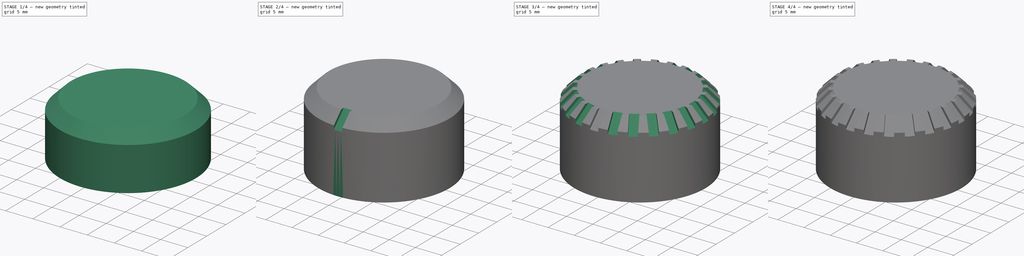
[diagram: build sequence overview — one tinted view per stage of 4, left to right]
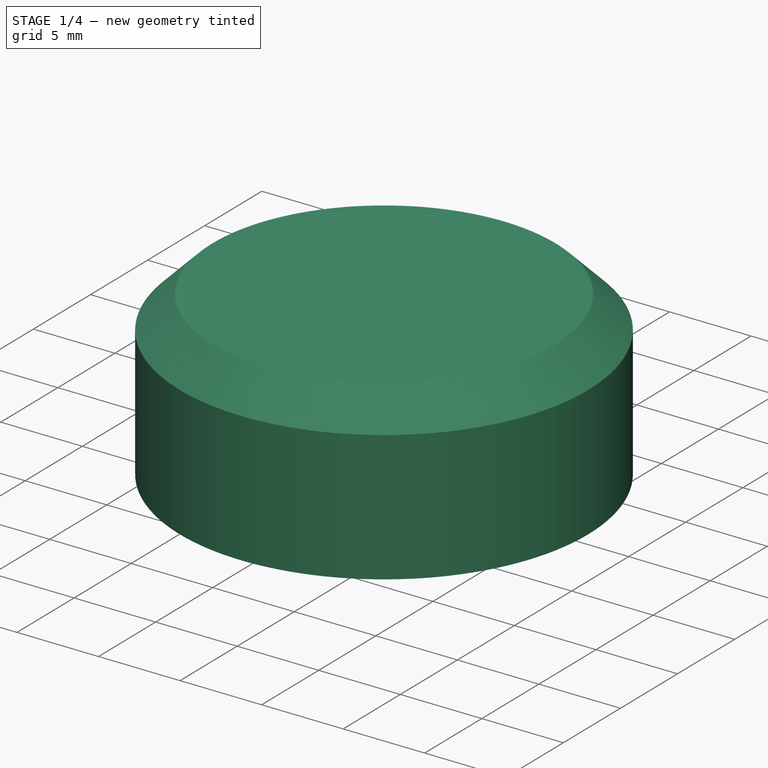
[diagram: stage 1 of 4 — iso view after this stage's code; geometry added in this stage tinted green]
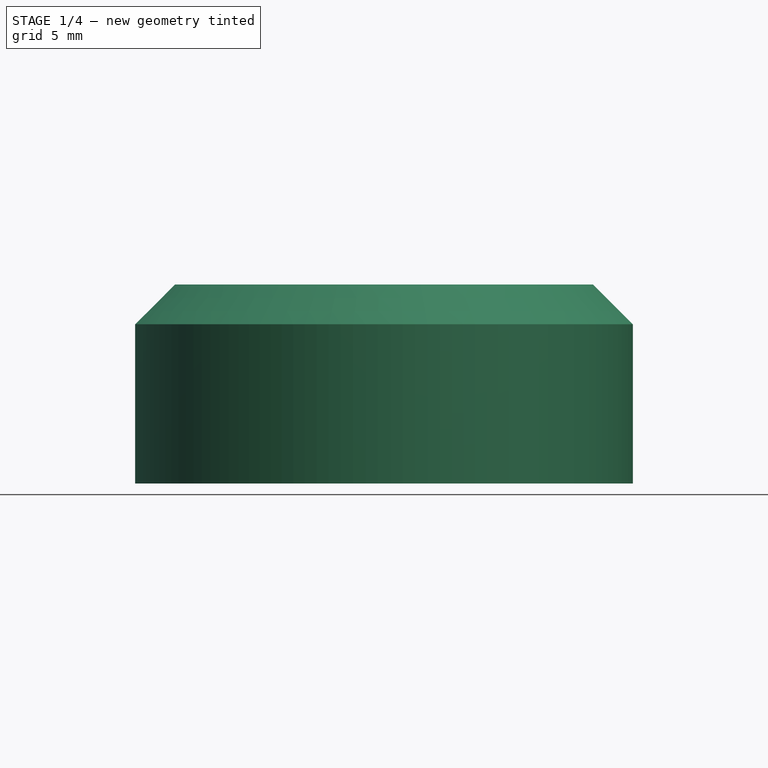
[diagram: stage 1 of 4 — front view after this stage's code; geometry added in this stage tinted green]
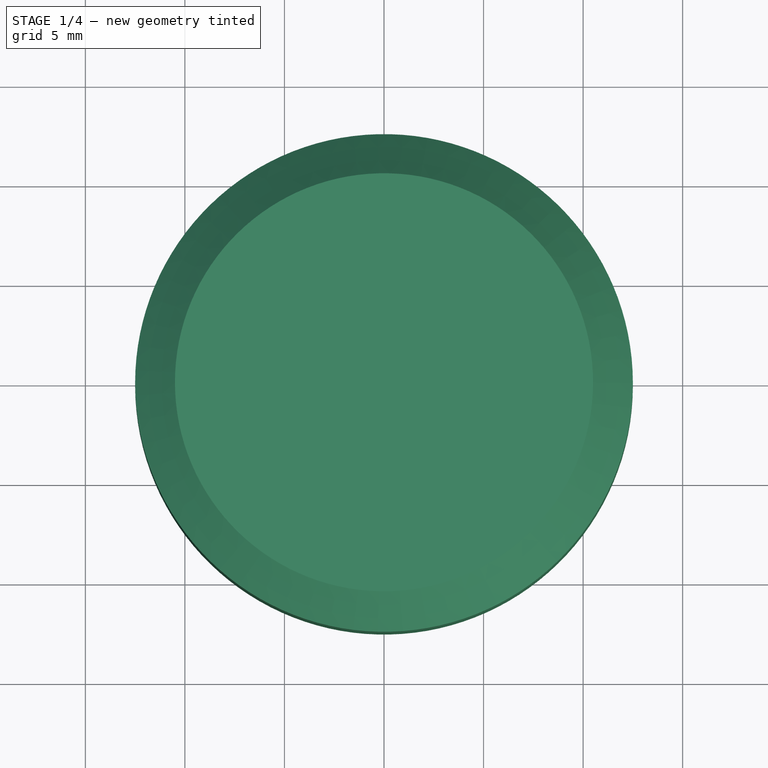
[diagram: stage 1 of 4 — top view after this stage's code; geometry added in this stage tinted green]
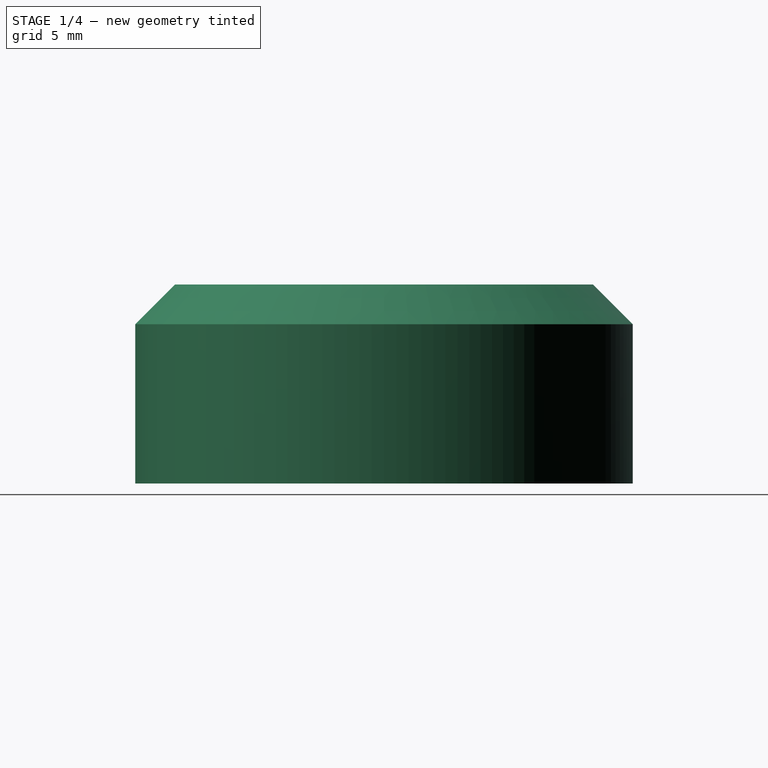
[diagram: stage 1 of 4 — right view after this stage's code; geometry added in this stage tinted green]
FCSTD DOCUMENT  (FreeCAD 1.0R39285 (Git))
Label: encoder
License: All rights reserved
LicenseURL: https://en.wikipedia.org/wiki/All_rights_reserved
objects: Sketcher::SketchObject×8, PartDesign::Pocket×4, PartDesign::Pad×3, PartDesign::Chamfer×3, PartDesign::PolarPattern×2, PartDesign::Body×2, PartDesign::Revolution×1
note: 55 computed .brp shape members not serialized (recipe doc carries the construction recipe); baked Part::Feature solids carry a one-line shape summary decoded from their .brp

FEATURE [PartDesign::Body] Body  label="cover"
  AllowCompound = false
  Group = -> [Sketch,Revolution,Sketch001,Pad,PolarPattern]
  Origin = -> Origin
  Tip = -> PolarPattern
FEATURE [Sketcher::SketchObject] Sketch002
  ArcFitTolerance = 1e-06
  AttachmentSupport = -> [XY_Plane001]
  FullyConstrained = true
  MakeInternals = false
  MapMode = 5
  sketch-geometry (1):
    g0: Circle CenterX=0 CenterY=0 CenterZ=0 NormalX=0 NormalY=0 NormalZ=1 AngleXU=0 Radius=12.5
  constraints (2):
    c: Coincident(g0,g-1)
    c: Diameter(g0) = 25
FEATURE [PartDesign::Pad] Pad001
  Direction = (0,0,1)
  Length = 10
  Length2 = 10
  Profile = -> Sketch002
  ReferenceAxis = -> Sketch002 [N_Axis]
  Refine = true
  Suppressed = false
  Type = 0
FEATURE [Sketcher::SketchObject] Sketch003
  ArcFitTolerance = 1e-06
  AttachmentSupport = -> [XY_Plane001]
  FullyConstrained = true
  MakeInternals = false
  MapMode = 5
  sketch-geometry (3):
    g0: ArcOfCircle CenterX=0 CenterY=0 CenterZ=0 NormalX=0 NormalY=0 NormalZ=1 AngleXU=0 Radius=3.1 StartAngle=2.81314 EndAngle=6.61164
    g1: LineSegment StartX=-2.93428 StartY=1 StartZ=0 EndX=2.93428 EndY=1 EndZ=0
    g2: GeomPoint X=0 Y=-3.1 Z=0
  constraints (8):
    c: Coincident(g0,g-1)
    c: Radius(g0) = 3.1
    c: Horizontal(g0,g0)
    c: Coincident(g1,g0)
    c: Coincident(g1,g0)
    c: PointOnObject(g2,g0)
    c: PointOnObject(g2,g-2)
    c: Distance(g2,g1) = 4.1
FEATURE [PartDesign::Pocket] Pocket
  BaseFeature = -> Pad001
  Direction = (0,0,-1)
  Length = 6
  Length2 = 5
  Profile = -> Sketch003
  ReferenceAxis = -> Sketch003 [N_Axis]
  Refine = true
  Reversed = true
  Suppressed = false
  Type = 0
FEATURE [PartDesign::Chamfer] Chamfer
  Angle = 45
  Base = -> Pocket [Edge3]
  BaseFeature = -> Pocket
  ChamferType = 0
  FlipDirection = false
  Refine = true
  Size = 2
  Size2 = 1
  SupportTransform = false
  Suppressed = false
  UseAllEdges = false
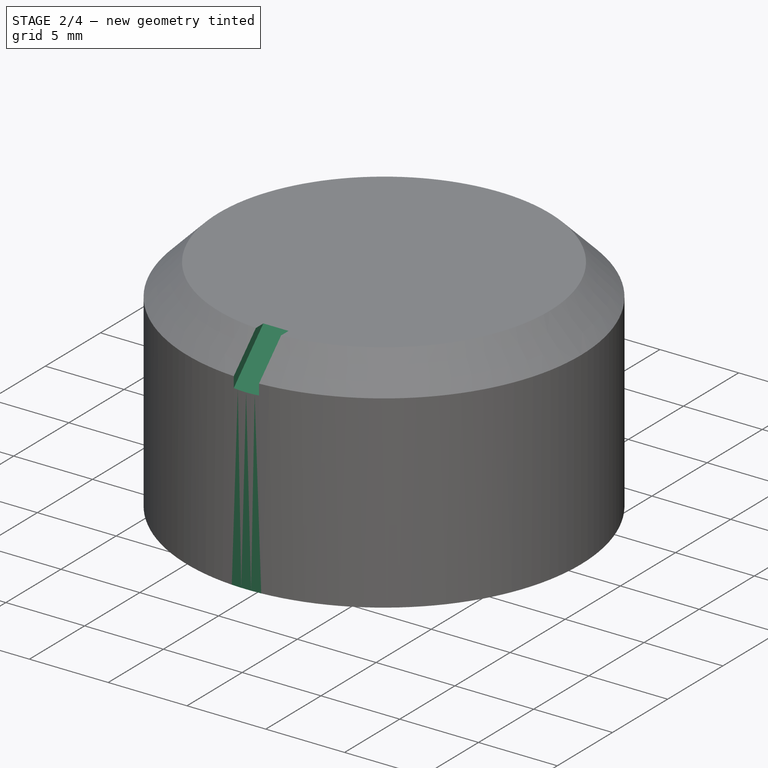
[diagram: stage 2 of 4 — iso view after this stage's code; geometry added in this stage tinted green]
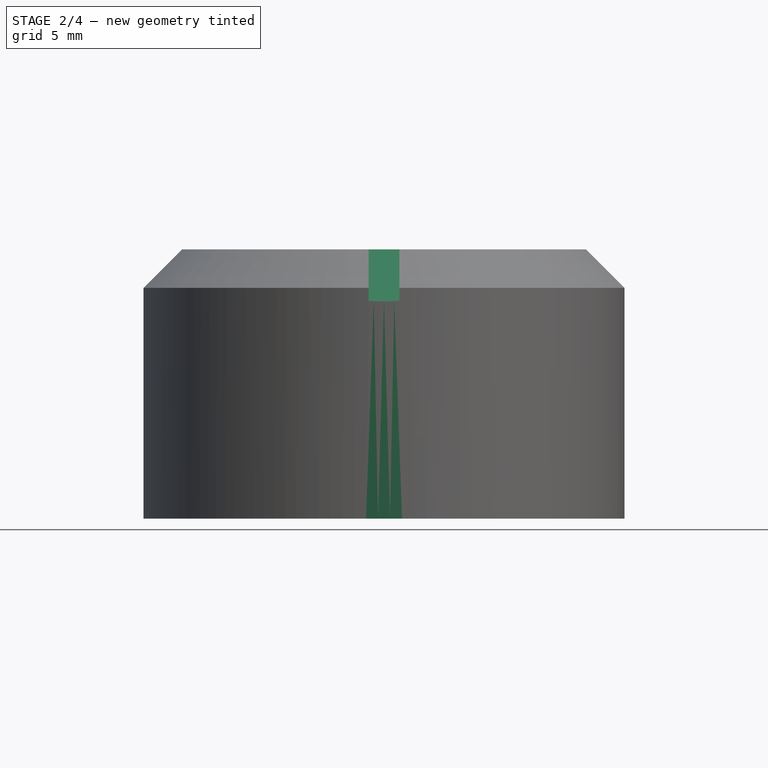
[diagram: stage 2 of 4 — front view after this stage's code; geometry added in this stage tinted green]
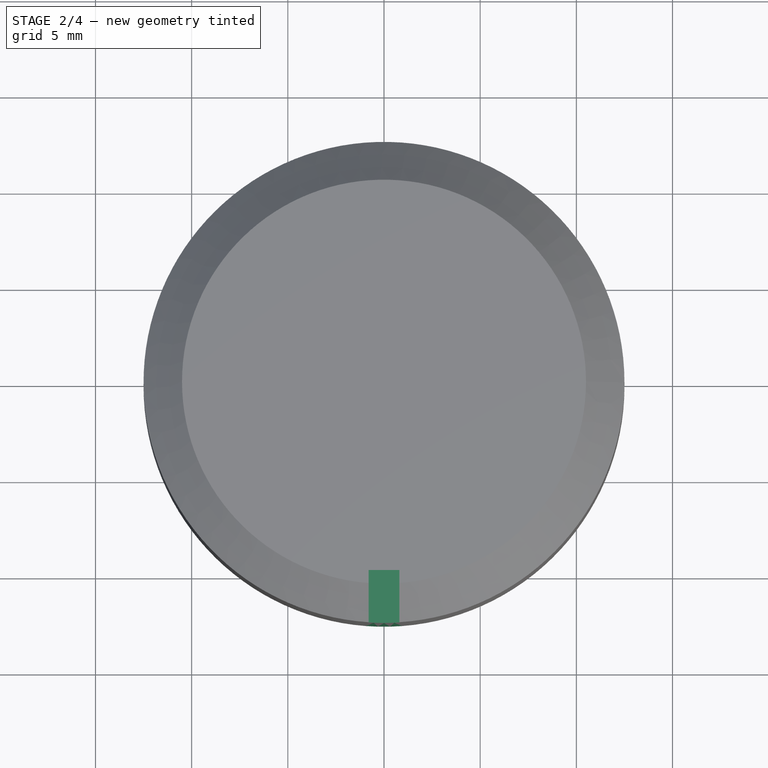
[diagram: stage 2 of 4 — top view after this stage's code; geometry added in this stage tinted green]
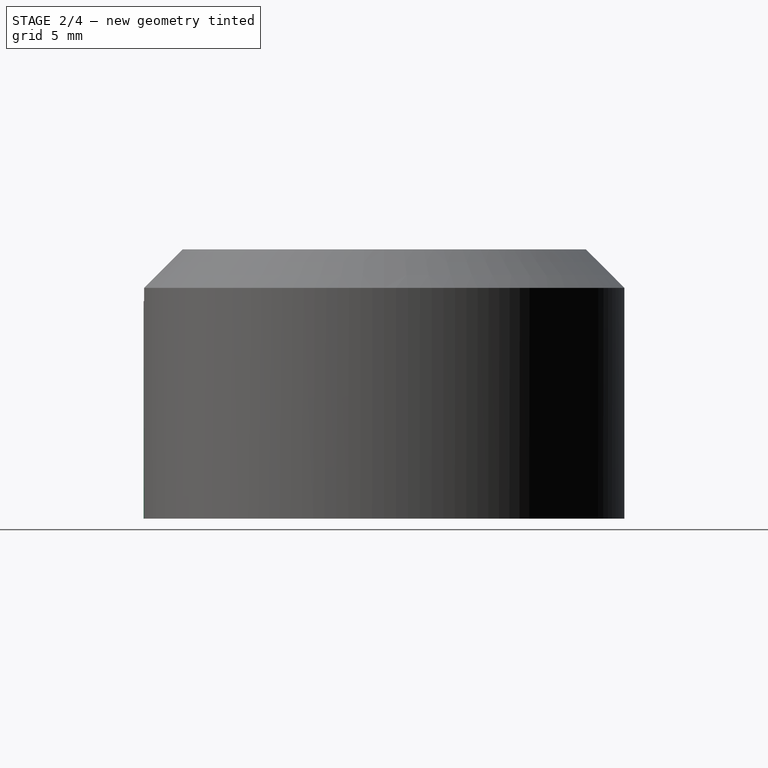
[diagram: stage 2 of 4 — right view after this stage's code; geometry added in this stage tinted green]
FEATURE [Sketcher::SketchObject] Sketch004
  ArcFitTolerance = 1e-06
  AttachmentSupport = -> [XY_Plane001]
  FullyConstrained = true
  MakeInternals = false
  MapMode = 5
  sketch-geometry (26):
    g0: GeomPoint X=0 Y=0 Z=0
    g1: LineSegment [constr] StartX=0 StartY=0 StartZ=0 EndX=-2.93428 EndY=1 EndZ=0
    g2: LineSegment StartX=-10 StartY=0.8 StartZ=0 EndX=-10 EndY=0.7 EndZ=0
    g3: LineSegment StartX=-9.8 StartY=0.5 StartZ=0 EndX=9.8 EndY=0.5 EndZ=0
    g4: LineSegment StartX=10 StartY=0.7 StartZ=0 EndX=10 EndY=0.8 EndZ=0
    g5: LineSegment StartX=9.8 StartY=1 StartZ=0 EndX=-9.8 EndY=1 EndZ=0
    g6: LineSegment StartX=-10 StartY=2.6 StartZ=0 EndX=-10 EndY=2.4 EndZ=0
    g7: LineSegment StartX=-9.6 StartY=2 StartZ=0 EndX=9.6 EndY=2 EndZ=0
    g8: LineSegment StartX=10 StartY=2.4 StartZ=0 EndX=10 EndY=2.6 EndZ=0
    g9: LineSegment StartX=9.6 StartY=3 StartZ=0 EndX=-9.6 EndY=3 EndZ=0
    g10: ArcOfCircle CenterX=9.6 CenterY=2.6 CenterZ=0 NormalX=0 NormalY=0 NormalZ=1 AngleXU=0 Radius=0.4 StartAngle=3e-16 EndAngle=1.5708
    g11: GeomPoint [constr] X=10 Y=3 Z=0
    g12: ArcOfCircle CenterX=9.6 CenterY=2.4 CenterZ=0 NormalX=0 NormalY=0 NormalZ=1 AngleXU=0 Radius=0.4 StartAngle=4.71239 EndAngle=6.28319
    g13: GeomPoint [constr] X=10 Y=2 Z=0
    g14: ArcOfCircle CenterX=-9.6 CenterY=2.6 CenterZ=0 NormalX=0 NormalY=0 NormalZ=1 AngleXU=0 Radius=0.4 StartAngle=1.5708 EndAngle=3.14159
    g15: GeomPoint [constr] X=-10 Y=3 Z=0
    g16: ArcOfCircle CenterX=-9.6 CenterY=2.4 CenterZ=0 NormalX=0 NormalY=0 NormalZ=1 AngleXU=0 Radius=0.4 StartAngle=3.14159 EndAngle=4.71239
    g17: GeomPoint [constr] X=-10 Y=2 Z=0
    g18: ArcOfCircle CenterX=9.8 CenterY=0.8 CenterZ=0 NormalX=0 NormalY=0 NormalZ=1 AngleXU=0 Radius=0.2 StartAngle=0 EndAngle=1.5708
    g19: GeomPoint [constr] X=10 Y=1 Z=0
    g20: ArcOfCircle CenterX=9.8 CenterY=0.7 CenterZ=0 NormalX=0 NormalY=0 NormalZ=1 AngleXU=0 Radius=0.2 StartAngle=4.71239 EndAngle=6.28319
    g21: GeomPoint [constr] X=10 Y=0.5 Z=0
    g22: ArcOfCircle CenterX=-9.8 CenterY=0.8 CenterZ=0 NormalX=0 NormalY=0 NormalZ=1 AngleXU=0 Radius=0.2 StartAngle=1.5708 EndAngle=3.14159
    g23: GeomPoint [constr] X=-10 Y=1 Z=0
    g24: ArcOfCircle CenterX=-9.8 CenterY=0.7 CenterZ=0 NormalX=0 NormalY=0 NormalZ=1 AngleXU=0 Radius=0.2 StartAngle=3.14159 EndAngle=4.71239
    g25: GeomPoint [constr] X=-10 Y=0.5 Z=0
  constraints (59):
    c: Coincident(g0,g-1)
    c: Coincident(g1,g0)
    c: Distance(g1,g1) = 3.1
    c: DistanceY(g-1,g1) = 1
    c: Vertical(g2)
    c: Vertical(g4)
    c: Horizontal(g5)
    c: Vertical(g6)
    c: Vertical(g8)
    c: Horizontal(g7)
    c: Horizontal(g9)
    c: Vertical(g23,g17)
    c: Vertical(g19,g13)
    c: PointOnObject(g1,g5)
    c: Distance(g23,g25) = 0.5
    c: Symmetric(g25,g21,g-2)
    c: DistanceY(g19,g13) = 1
    c: DistanceY(g17,g15) = 1
    c: DistanceX(g15,g11) = 20
    c: PointOnObject(g11,g9)
    c: PointOnObject(g11,g8)
    c: Tangent(g9,g10) = -1.5708
    c: Tangent(g8,g10) = -1.5708
    c: PointOnObject(g13,g8)
    c: PointOnObject(g13,g7)
    c: Tangent(g8,g12) = -1.5708
    c: Tangent(g7,g12) = -1.5708
    c: PointOnObject(g15,g9)
    c: PointOnObject(g15,g6)
    c: Tangent(g9,g14) = -1.5708
    c: Tangent(g6,g14) = -1.5708
    c: PointOnObject(g17,g7)
    c: PointOnObject(g17,g6)
    c: Tangent(g7,g16) = -1.5708
    c: Tangent(g6,g16) = -1.5708
    c: Equal(g10,g12)
    c: Equal(g12,g16)
    c: Equal(g16,g14)
    c: Radius(g14) = 0.4
    c: PointOnObject(g19,g5)
    c: PointOnObject(g19,g4)
    c: Tangent(g5,g18) = -1.5708
    c: Tangent(g4,g18) = -1.5708
    c: PointOnObject(g21,g4)
    c: PointOnObject(g21,g3)
    c: Tangent(g4,g20) = -1.5708
    c: Tangent(g3,g20) = -1.5708
    c: PointOnObject(g23,g5)
    c: PointOnObject(g23,g2)
    c: Tangent(g5,g22) = -1.5708
    c: Tangent(g2,g22) = -1.5708
    c: PointOnObject(g25,g3)
    c: PointOnObject(g25,g2)
    c: Tangent(g3,g24) = -1.5708
    c: Tangent(g2,g24) = -1.5708
    c: Equal(g24,g22)
    c: Equal(g22,g18)
    c: Equal(g18,g20)
    c: Radius(g18) = 0.2
FEATURE [PartDesign::Pocket] Pocket001
  BaseFeature = -> Chamfer
  Direction = (0,0,-1)
  Length = 8
  Length2 = 5
  Profile = -> Sketch004
  ReferenceAxis = -> Sketch004 [N_Axis]
  Refine = true
  Reversed = true
  Suppressed = false
  Type = 0
FEATURE [Sketcher::SketchObject] Sketch005
  ArcFitTolerance = 1e-06
  AttachmentSupport = -> [XY_Plane001]
  FullyConstrained = true
  MakeInternals = false
  MapMode = 5
  sketch-geometry (2):
    g0: Circle CenterX=0 CenterY=0 CenterZ=0 NormalX=0 NormalY=0 NormalZ=1 AngleXU=0 Radius=12.5
    g1: Circle CenterX=0 CenterY=0 CenterZ=0 NormalX=0 NormalY=0 NormalZ=1 AngleXU=0 Radius=11
  constraints (4):
    c: Coincident(g0,g-1)
    c: Coincident(g1,g0)
    c: Diameter(g0) = 25
    c: Diameter(g1) = 22
FEATURE [PartDesign::Pad] Pad002
  BaseFeature = -> Pocket001
  Direction = (0,0,1)
  Length = 4
  Length2 = 10
  Profile = -> Sketch005
  ReferenceAxis = -> Sketch005 [N_Axis]
  Refine = true
  Reversed = true
  Suppressed = false
  Type = 0
FEATURE [Sketcher::SketchObject] Sketch006
  ArcFitTolerance = 1e-06
  AttachmentSupport = -> [YZ_Plane001]
  ExternalGeometry = -> [Pad002]
  FullyConstrained = true
  MakeInternals = false
  MapMode = 5
  Placement = pos=(0,0,0) rot=(0.57735,0.57735,0.57735;2.0944rad)
  sketch-geometry (4):
    g0: LineSegment StartX=-9.79289 StartY=10 StartZ=0 EndX=-12.5 EndY=7.29289 EndZ=0
    g1: LineSegment StartX=-12.5 StartY=7.29289 StartZ=0 EndX=-12.8536 EndY=7.64645 EndZ=0
    g2: LineSegment StartX=-12.8536 StartY=7.64645 StartZ=0 EndX=-10.1464 EndY=10.3536 EndZ=0
    g3: LineSegment StartX=-10.1464 StartY=10.3536 StartZ=0 EndX=-9.79289 EndY=10 EndZ=0
  constraints (12):
    c: Coincident(g1,g0)
    c: Coincident(g2,g1)
    c: Coincident(g3,g2)
    c: Coincident(g3,g0)
    c: Parallel(g2,g0)
    c: Parallel(g3,g1)
    c: Perpendicular(g2,g3)
    c: Angle(g-1,g0) = 0.785398
    c: Distance(g3,g3) = 0.5
    c: Vertical(g-4,g0)
    c: PointOnObject(g0,g-3)
    c: PointOnObject(g-4,g2)
FEATURE [PartDesign::Pocket] Pocket002
  BaseFeature = -> Pad002
  Direction = (-1,0,0)
  Length = 0.8
  Length2 = 0.8
  Profile = -> Sketch006
  ReferenceAxis = -> Sketch006 [N_Axis]
  Refine = true
  Suppressed = false
  Type = 4
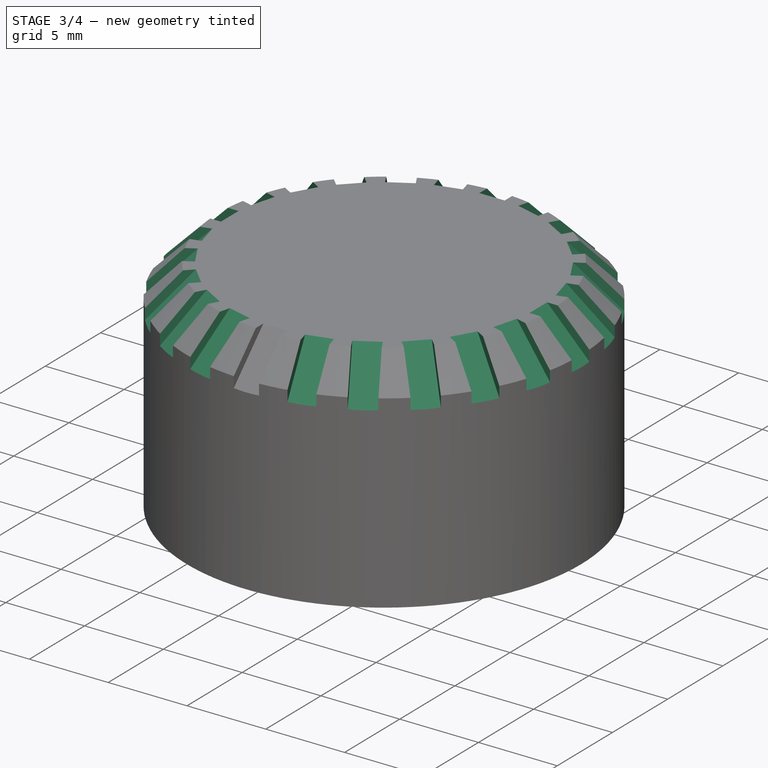
[diagram: stage 3 of 4 — iso view after this stage's code; geometry added in this stage tinted green]
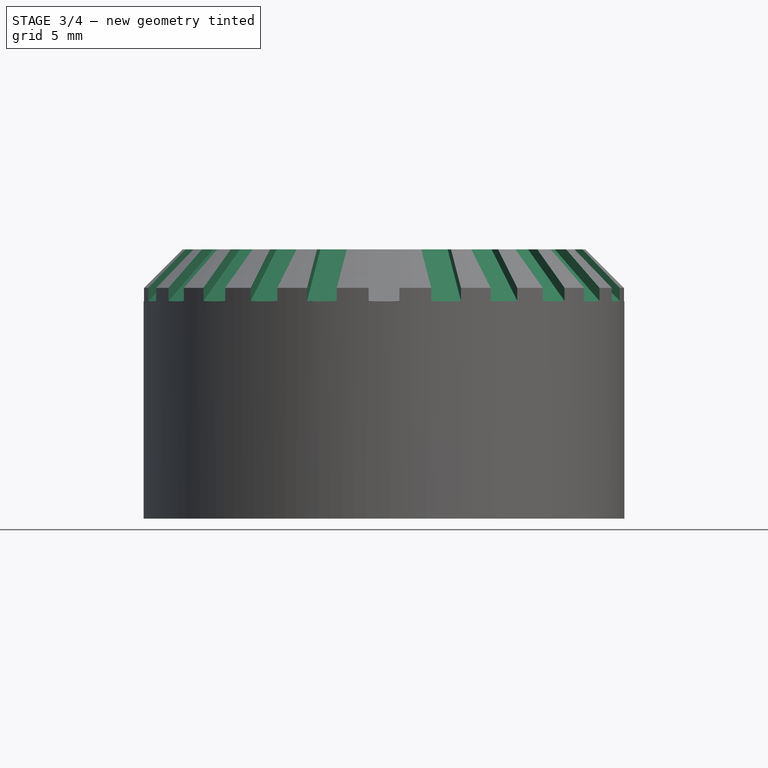
[diagram: stage 3 of 4 — front view after this stage's code; geometry added in this stage tinted green]
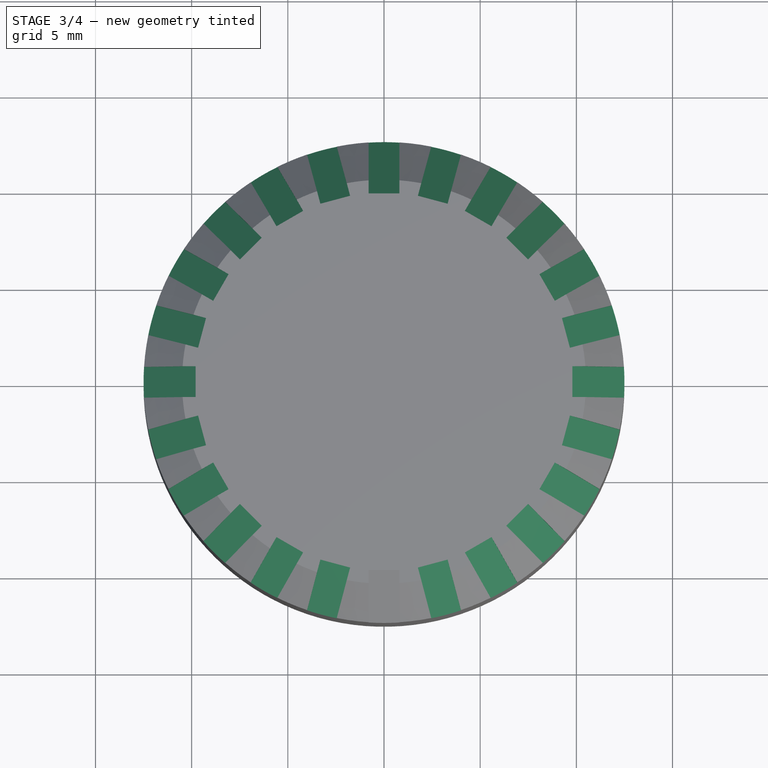
[diagram: stage 3 of 4 — top view after this stage's code; geometry added in this stage tinted green]
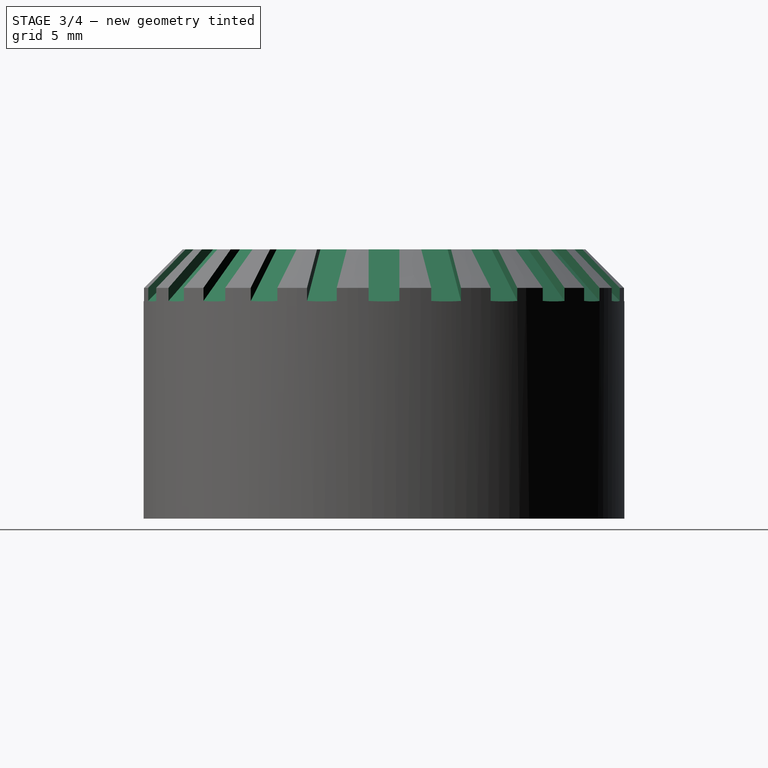
[diagram: stage 3 of 4 — right view after this stage's code; geometry added in this stage tinted green]
FEATURE [PartDesign::PolarPattern] PolarPattern001
  Angle = 360
  Axis = -> Z_Axis001
  BaseFeature = -> Pocket002
  Mode = 0
  Occurrences = 24
  Offset = 120
  Originals = -> [Pocket002]
  Refine = true
  Suppressed = false
  TransformMode = 0
FEATURE [Sketcher::SketchObject] Sketch007
  ArcFitTolerance = 1e-06
  AttachmentSupport = -> [PolarPattern001]
  ExternalGeometry = -> [PolarPattern001]
  FullyConstrained = true
  MakeInternals = false
  MapMode = 5
  Placement = pos=(0,0,6) rot=(1,0,0;3.14159rad)
  sketch-geometry (4):
    g0: LineSegment StartX=-10 StartY=-0.8 StartZ=0 EndX=-10 EndY=-2.4 EndZ=0
    g1: LineSegment StartX=-10 StartY=-2.4 StartZ=0 EndX=10 EndY=-2.4 EndZ=0
    g2: LineSegment StartX=10 StartY=-2.4 StartZ=0 EndX=10 EndY=-0.8 EndZ=0
    g3: LineSegment StartX=10 StartY=-0.8 StartZ=0 EndX=-10 EndY=-0.8 EndZ=0
  constraints (10):
    c: Coincident(g0,g1)
    c: Coincident(g1,g2)
    c: Coincident(g2,g3)
    c: Coincident(g3,g0)
    c: Vertical(g0)
    c: Vertical(g2)
    c: Horizontal(g1)
    c: Horizontal(g3)
    c: Coincident(g0,g-5)
    c: Coincident(g1,g-4)
FEATURE [PartDesign::Pocket] Pocket003
  BaseFeature = -> PolarPattern001
  Direction = (0,0,1)
  Length = 0.5
  Length2 = 5
  Profile = -> Sketch007
  ReferenceAxis = -> Sketch007 [N_Axis]
  Refine = true
  Reversed = true
  Suppressed = false
  Type = 0
FEATURE [PartDesign::Chamfer] Chamfer001
  Angle = 45
  Base = -> Pocket003 [Edge337]
  BaseFeature = -> Pocket003
  ChamferType = 0
  FlipDirection = false
  Refine = true
  Size = 1
  Size2 = 1
  SupportTransform = false
  Suppressed = false
  UseAllEdges = false
FEATURE [PartDesign::Chamfer] Chamfer002
  Angle = 45
  Base = -> Chamfer001 [Edge9]
  BaseFeature = -> Chamfer001
  ChamferType = 0
  FlipDirection = false
  Refine = true
  Size = 0.5
  Size2 = 1
  SupportTransform = false
  Suppressed = false
  UseAllEdges = false
FEATURE [PartDesign::Body] Body001  label="knob"
  AllowCompound = false
  Group = -> [Sketch002,Sketch003,Pad001,Pocket,Chamfer,Sketch004,Pocket001,Sketch005,Pad002,Sketch006,Pocket002,PolarPattern001,Sketch007,Pocket003,Chamfer001,Chamfer002]
  Origin = -> Origin001
  Placement = pos=(0,0,10) rot=(0,0,1;0rad)
  Tip = -> Chamfer002
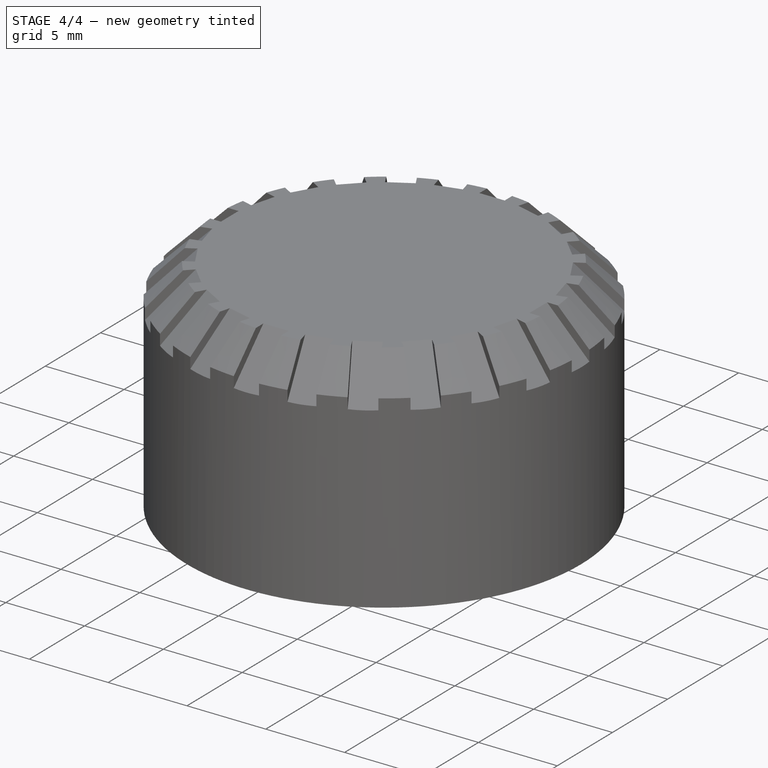
[diagram: stage 4 of 4 — iso view after this stage's code; geometry added in this stage tinted green]
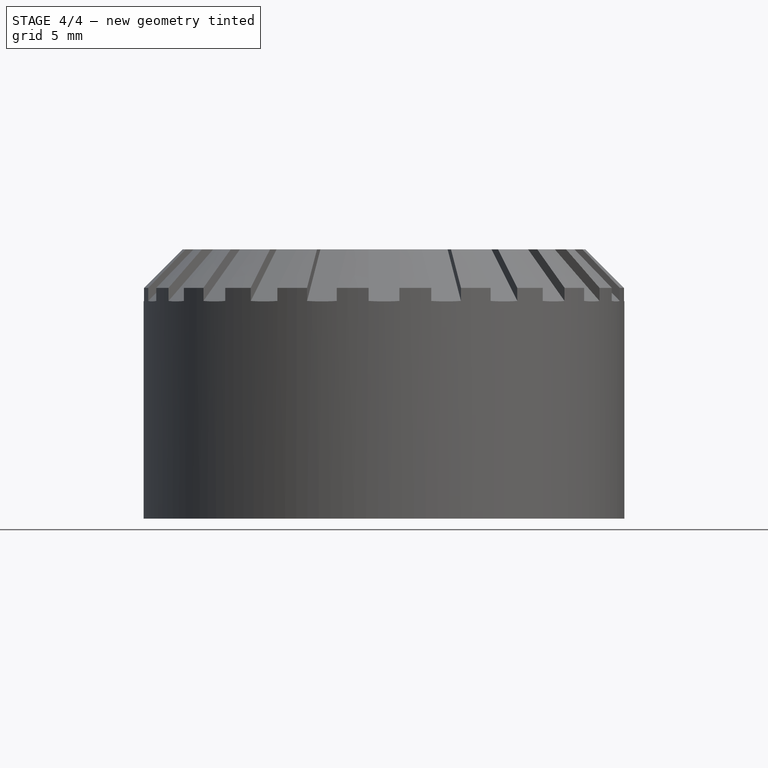
[diagram: stage 4 of 4 — front view after this stage's code; geometry added in this stage tinted green]
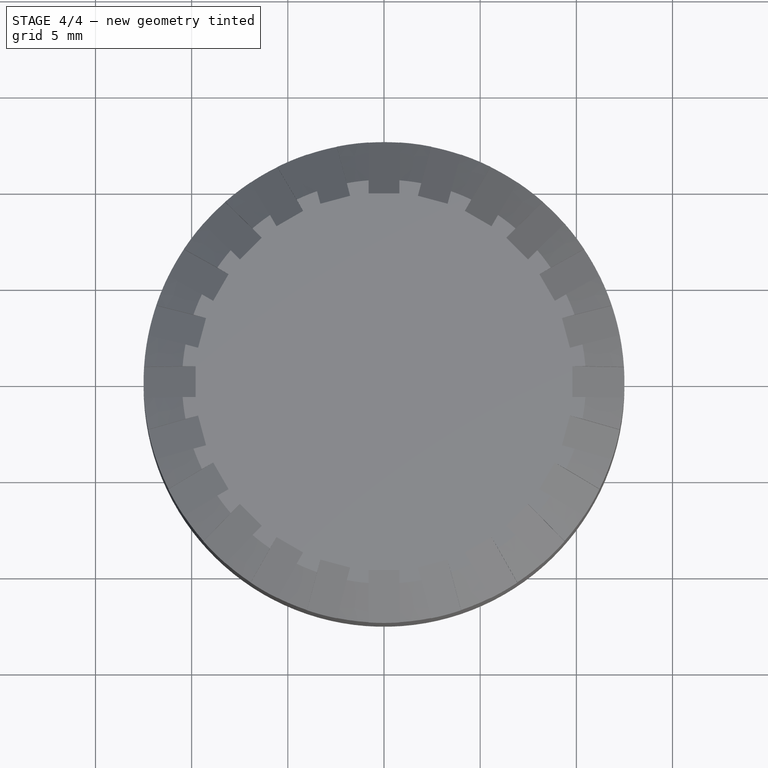
[diagram: stage 4 of 4 — top view after this stage's code; geometry added in this stage tinted green]
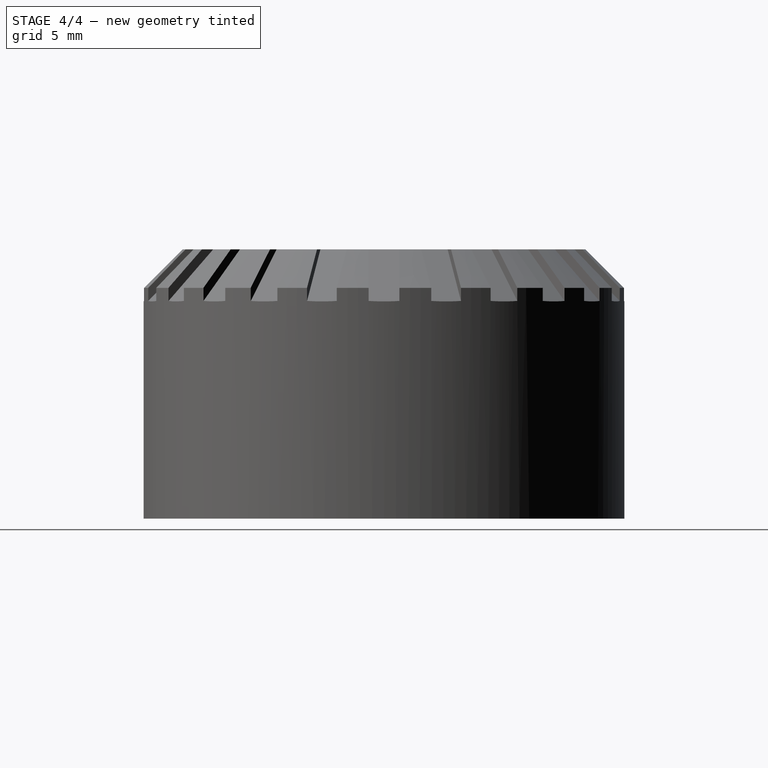
[diagram: stage 4 of 4 — right view after this stage's code; geometry added in this stage tinted green]
FEATURE [Sketcher::SketchObject] Sketch
  ArcFitTolerance = 1e-06
  AttachmentSupport = -> [XZ_Plane]
  FullyConstrained = true
  MakeInternals = false
  MapMode = 5
  Placement = pos=(0,0,0) rot=(1,0,0;1.5708rad)
  sketch-geometry (7):
    g0: LineSegment StartX=-10 StartY=0 StartZ=0 EndX=-10 EndY=5.30224 EndZ=0
    g1: LineSegment StartX=-9.4 StartY=5 StartZ=0 EndX=-9.4 EndY=0 EndZ=0
    g2: LineSegment StartX=-9.4 StartY=0 StartZ=0 EndX=-10 EndY=0 EndZ=0
    g3: LineSegment StartX=-9.4 StartY=5 StartZ=0 EndX=-4 EndY=9 EndZ=0
    g4: LineSegment StartX=-4 StartY=9 StartZ=0 EndX=-5.00802 EndY=9 EndZ=0
    g5: LineSegment StartX=-5.00802 StartY=9 StartZ=0 EndX=-10 EndY=5.30224 EndZ=0
    g6: LineSegment [constr] StartX=-5.00802 StartY=9 StartZ=0 EndX=-4.65088 EndY=8.51787 EndZ=0
  constraints (21):
    c: PointOnObject(g0,g-1)
    c: Vertical(g0)
    c: PointOnObject(g1,g-1)
    c: Vertical(g1)
    c: Coincident(g2,g1)
    c: Coincident(g2,g0)
    c: Distance(g-2,g0) = 10
    c: DistanceY(g1,g1) = 5
    c: Distance(g2,g2) = 0.6
    c: Coincident(g3,g1)
    c: Coincident(g4,g3)
    c: Horizontal(g4)
    c: Coincident(g5,g4)
    c: Coincident(g5,g0)
    c: Parallel(g5,g3)
    c: DistanceY(g-1,g3) = 9
    c: DistanceX(g3,g-1) = 4
    c: Coincident(g6,g4)
    c: PointOnObject(g6,g3)
    c: Perpendicular(g3,g6)
    c: Equal(g6,g2)
FEATURE [PartDesign::Revolution] Revolution
  Angle = 360
  Angle2 = 60
  Axis = (0,2e-16,1)
  Base = (0,0,0)
  Placement = pos=(0,0,0) rot=(1,0,0;1.5708rad)
  Profile = -> Sketch
  ReferenceAxis = -> Sketch [V_Axis]
  Refine = true
  Suppressed = false
  Type = 0
FEATURE [Sketcher::SketchObject] Sketch001
  ArcFitTolerance = 1e-06
  AttachmentSupport = -> [XY_Plane]
  FullyConstrained = true
  MakeInternals = false
  MapMode = 5
  sketch-geometry (10):
    g0: ArcOfCircle CenterX=-10.3 CenterY=-1e-16 CenterZ=0 NormalX=0 NormalY=0 NormalZ=1 AngleXU=0 Radius=1.8 StartAngle=1.5708 EndAngle=4.71239
    g1: ArcOfCircle CenterX=10.3 CenterY=1e-16 CenterZ=0 NormalX=0 NormalY=0 NormalZ=1 AngleXU=0 Radius=1.8 StartAngle=4.71239 EndAngle=7.85398
    g2: LineSegment [constr] StartX=-10.3 StartY=1.8 StartZ=0 EndX=10.3 EndY=1.8 EndZ=0
    g3: LineSegment [constr] StartX=-10.3 StartY=-1.8 StartZ=0 EndX=10.3 EndY=-1.8 EndZ=0
    g4: LineSegment StartX=-10.3 StartY=-1.8 StartZ=0 EndX=-9.6 EndY=-1.8 EndZ=0
    g5: LineSegment StartX=-9.6 StartY=-1.8 StartZ=0 EndX=-9.6 EndY=1.8 EndZ=0
    g6: LineSegment StartX=-9.6 StartY=1.8 StartZ=0 EndX=-10.3 EndY=1.8 EndZ=0
    g7: LineSegment StartX=10.3 StartY=-1.8 StartZ=0 EndX=9.6 EndY=-1.8 EndZ=0
    g8: LineSegment StartX=10.3 StartY=1.8 StartZ=0 EndX=9.6 EndY=1.8 EndZ=0
    g9: LineSegment StartX=9.6 StartY=1.8 StartZ=0 EndX=9.6 EndY=-1.8 EndZ=0
  constraints (25):
    c: Tangent(g0,g2) = 1.5708
    c: Tangent(g0,g3) = -1.5708
    c: Tangent(g1,g2) = 1.5708
    c: Tangent(g1,g3) = -1.5708
    c: Equal(g0,g1)
    c: Horizontal(g3)
    c: Symmetric(g1,g0,g-1)
    c: Distance(g3,g3) = 20.6
    c: Distance(g2,g3) = 3.6
    c: Coincident(g4,g0)
    c: PointOnObject(g4,g3)
    c: Coincident(g5,g4)
    c: PointOnObject(g5,g2)
    c: Vertical(g5)
    c: Distance(g4,g4) = 0.7
    c: Coincident(g6,g5)
    c: Coincident(g6,g0)
    c: Coincident(g7,g1)
    c: PointOnObject(g7,g3)
    c: Coincident(g8,g1)
    c: Coincident(g9,g8)
    c: Coincident(g9,g7)
    c: Vertical(g9)
    c: Horizontal(g8)
    c: Equal(g7,g4)
FEATURE [PartDesign::Pad] Pad
  BaseFeature = -> Revolution
  Direction = (0,0,1)
  Length = 3
  Length2 = 10
  Placement = pos=(0,0,0) rot=(1,0,0;1.5708rad)
  Profile = -> Sketch001
  ReferenceAxis = -> Sketch001 [N_Axis]
  Refine = true
  Suppressed = false
  Type = 0
FEATURE [PartDesign::PolarPattern] PolarPattern
  Angle = 360
  Axis = -> Sketch001 [N_Axis]
  BaseFeature = -> Pad
  Mode = 0
  Occurrences = 4
  Offset = 120
  Originals = -> [Pad]
  Placement = pos=(0,0,0) rot=(1,0,0;1.5708rad)
  Refine = true
  Suppressed = false
  TransformMode = 0
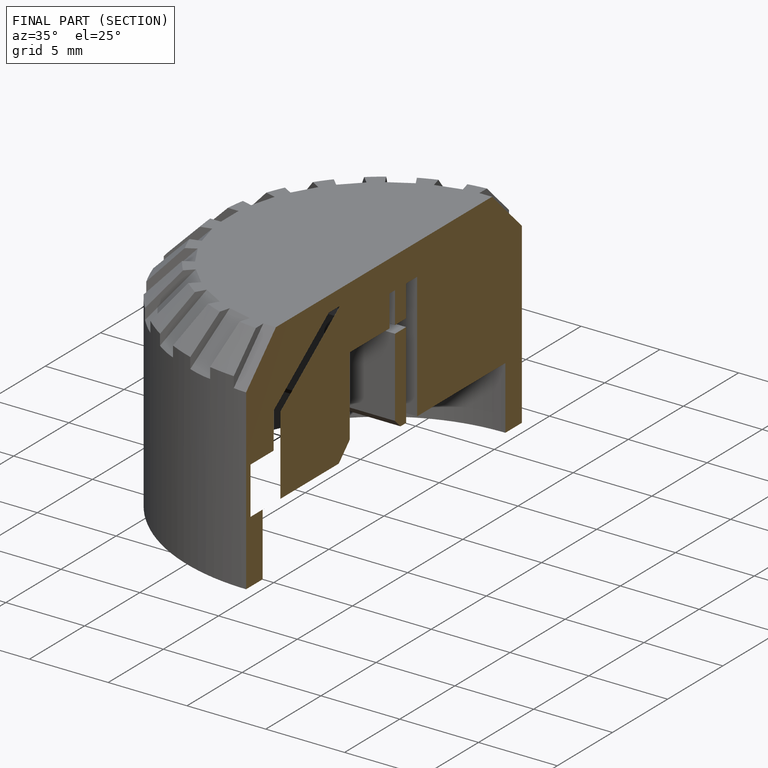
[diagram: finished part — half-section view (interior)]
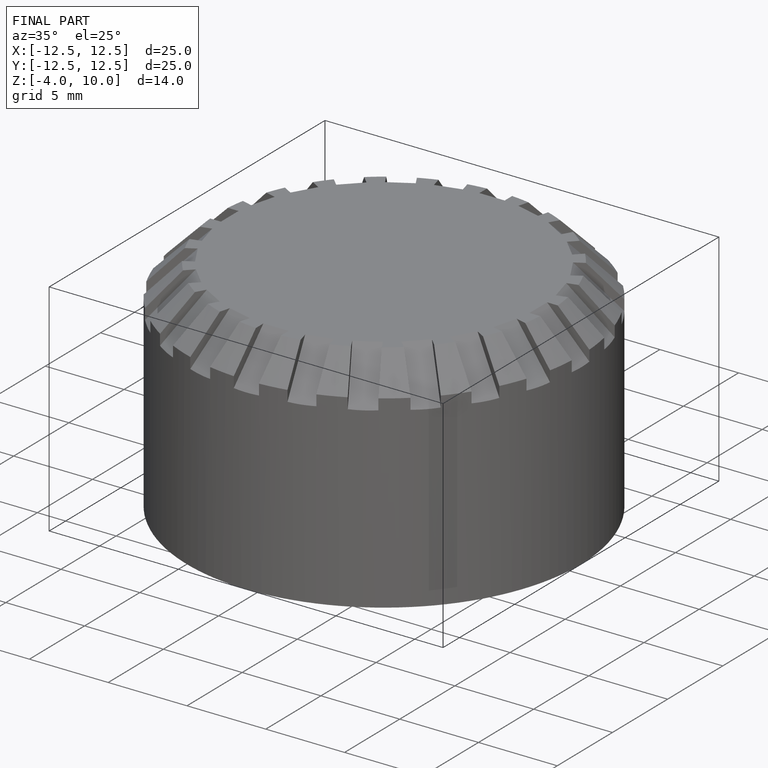
[diagram: finished part — iso view with bounding-box wireframe]
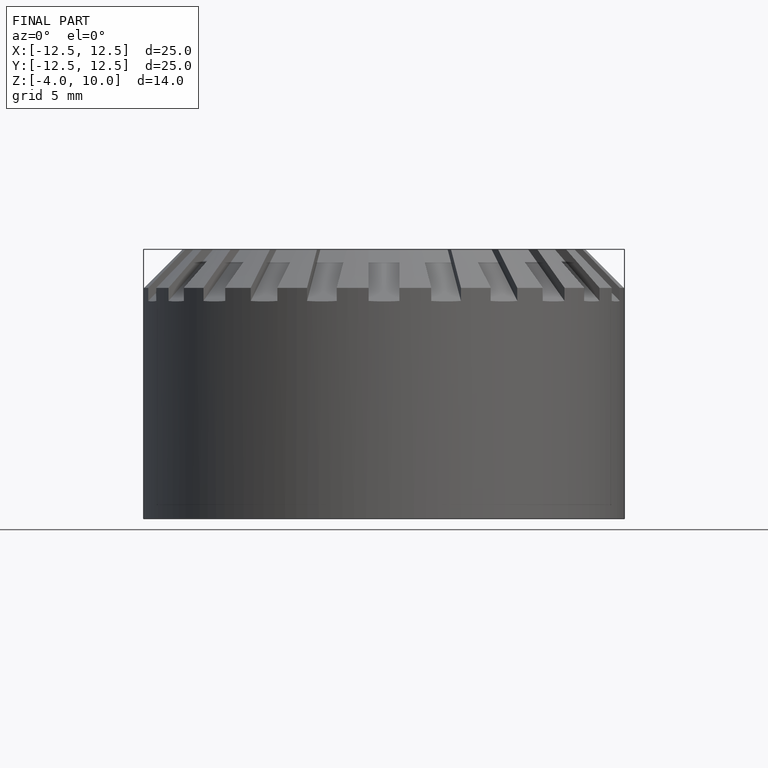
[diagram: finished part — front view with bounding-box wireframe]
